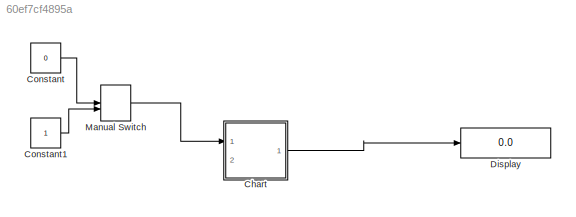
MODEL slx_60ef7cf4895a
KIND model
CONFIG AbsTol = auto
CONFIG FixedStep = auto
CONFIG MaxStep = auto
CONFIG MinStep = auto
CONFIG RelTol = 1e-3
CONFIG SampleTimeConstraint = Unconstrained
CONFIG Solver = VariableStepAuto
CONFIG SolverMode = Auto
CONFIG SolverName = VariableStepAuto
CONFIG StartTime = 0.0
CONFIG StopTime = 10.0
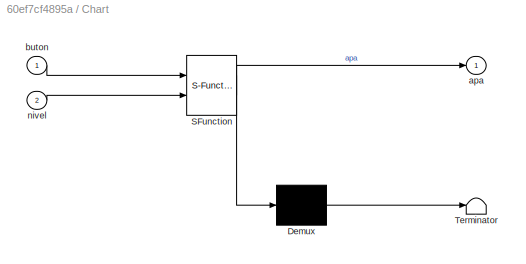
BLOCK [SubSystem] Chart
  ErrorFcn = Stateflow.Translate.translate
  PermitHierarchicalResolution = ExplicitOnly
  Ports = [2, 1]
  RequestExecContextInheritance = off
  SFBlockType = Chart
  TreatAsAtomicUnit = on
  Variant = off
BLOCK [Demux] Chart/ Demux 
  Outputs = 1
  Ports = [1, 1]
BLOCK [S-Function] Chart/ SFunction 
  EnableBusSupport = on
  FunctionName = sf_sfun
  PortCounts = [2 2]
  Ports = [2, 2]
  SFunctionDeploymentMode = off
  Tag = Stateflow S-Function untitled2 3
BLOCK [Terminator] Chart/ Terminator 
BLOCK [Outport] Chart/apa
  IconDisplay = Port number
BLOCK [Inport] Chart/buton
  IconDisplay = Port number
BLOCK [Inport] Chart/nivel
  IconDisplay = Port number
  Port = 2
BLOCK [Constant] Constant
  Value = 0
BLOCK [Constant] Constant1
BLOCK [Display] Display
  Decimation = 1
  Ports = [1]
BLOCK [ManualSwitch] Manual Switch
LINE Chart:1 -> Display:1
LINE Constant1:1 -> Manual Switch:2
LINE Constant:1 -> Manual Switch:1
LINE Manual Switch:1 -> Chart:1
CHART Chart states=4 transitions=7
  STATE_LABEL 'ON\nentry: apa=1;\n int=0;\n dialog ctr = ctr + 1;'
  STATE_LABEL 'OFF\nentry: apa=0;\n ctr=0;\n'
  STATE_LABEL 'ONBazin'
  STATE_LABEL 'OFFBazin'
